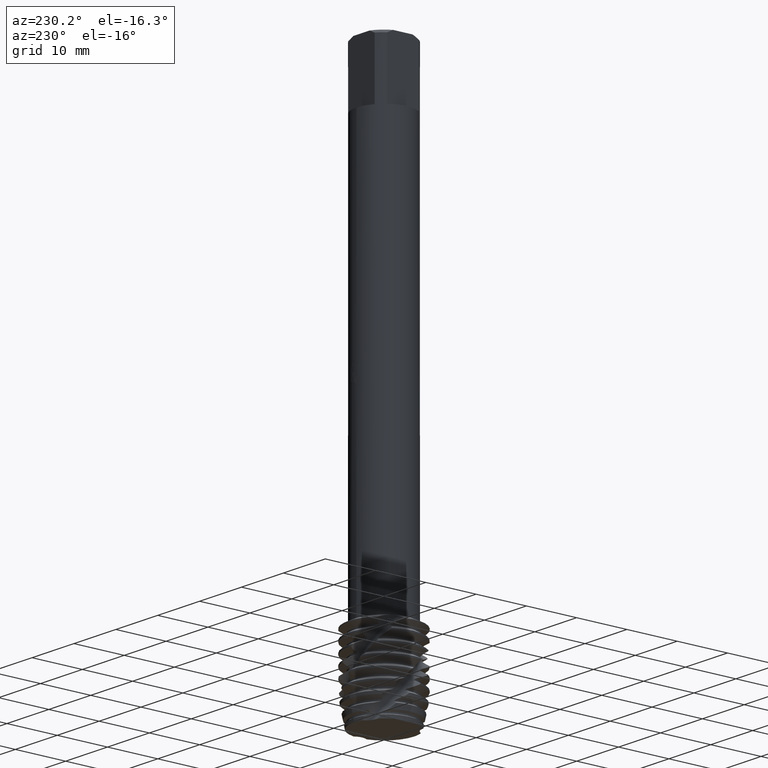
[diagram: clean part render]
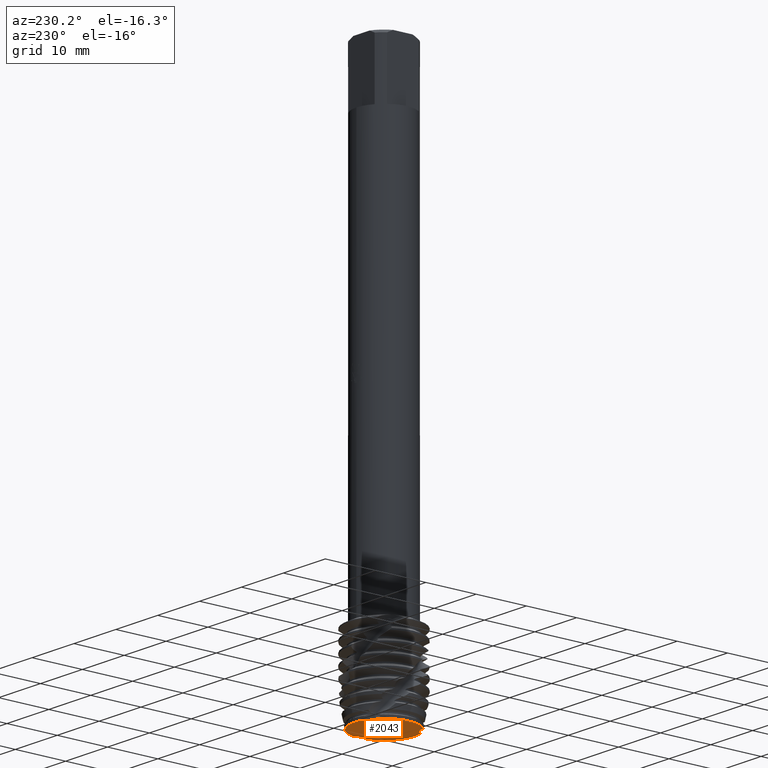
[diagram: same view with one face highlighted and labeled with its STEP entity id]
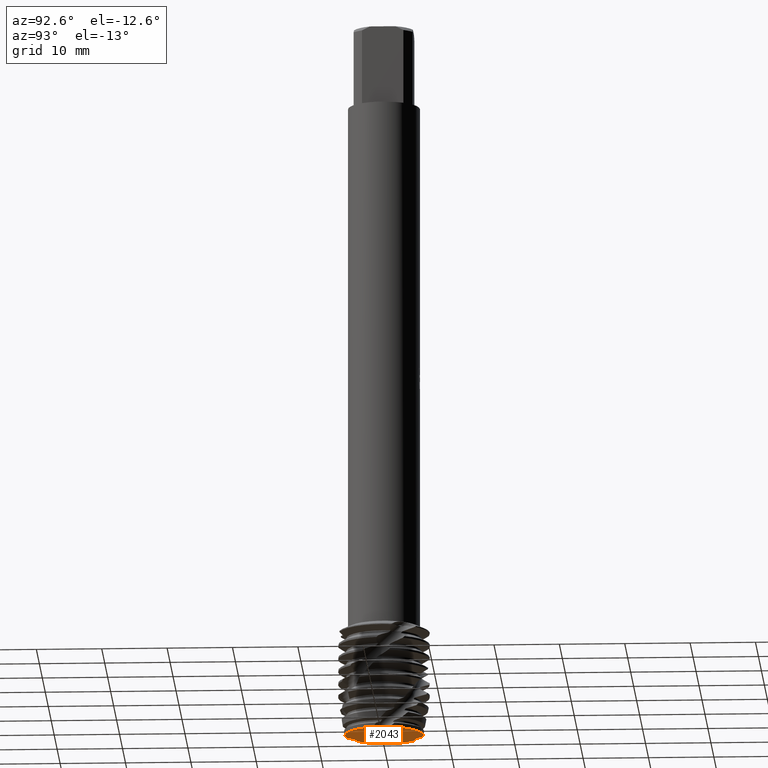
[diagram: same view with one face highlighted and labeled with its STEP entity id]
A machine part, auxiliary view. The second image highlights one B-rep face of the part: STEP entity #2043.
A second angle (auxiliary view) of the same face is appended — the face is thin or edge-on in the first view.
In plain terms, the highlighted planar face has unit normal (0, 0, -1).
Its self-contained STEP definition (entity closure, byte-faithful):
#1387=EDGE_CURVE('',#1527,#3391,#3710,.T.);
#1527=VERTEX_POINT('',#3866);
#1533=EDGE_CURVE('',#2885,#2147,#3872,.T.);
#1775=VERTEX_POINT('',#4143);
#1853=VERTEX_POINT('',#4228);
#1913=EDGE_CURVE('',#1853,#1775,#4291,.T.);
#2043=ADVANCED_FACE('',(#4432),#4433,.T.);
#2147=VERTEX_POINT('',#4544);
#2183=VERTEX_POINT('',#4586);
#2297=EDGE_CURVE('',#2183,#2839,#4714,.T.);
#2327=EDGE_CURVE('',#2147,#2183,#4748,.T.);
#2839=VERTEX_POINT('',#5303);
#2885=VERTEX_POINT('',#5352);
#3123=EDGE_CURVE('',#1775,#2885,#5614,.T.);
#3229=EDGE_CURVE('',#2839,#1527,#5727,.T.);
#3305=EDGE_CURVE('',#3391,#1853,#5808,.T.);
#3391=VERTEX_POINT('',#5899);
#3710=CIRCLE('',#6514,6.0);
#3866=CARTESIAN_POINT('',(5.82772734334397,-1.4274431728237,-110.0));
#3872=B_SPLINE_CURVE_WITH_KNOTS('',3,(#7151,#7152,#7153,#7154,#7155,#7156,#7157,#7158,#7159,#7160,#7161,#7162),.UNSPECIFIED.,.F.,.F.,(4,2,2,2,2,4),(0.0,0.896091143491479,1.79126175668903,2.68553150115345,3.57943211253273,4.46741985184594),.UNSPECIFIED.);
#4143=CARTESIAN_POINT('',(-4.150065721796,-4.3332383392532,-110.0));
#4228=CARTESIAN_POINT('',(-1.99696376137666,-5.65792680544282,-110.0));
#4291=B_SPLINE_CURVE_WITH_KNOTS('',3,(#8117,#8118,#8119,#8120,#8121,#8122,#8123,#8124,#8125,#8126,#8127,#8128,#8129,#8130),.UNSPECIFIED.,.F.,.F.,(4,2,2,2,2,2,4),(0.0,0.894989521054663,1.78913594708907,2.68303224342842,3.5774051301914,4.1889515665384,4.80058551504106),.UNSPECIFIED.);
#4432=FACE_OUTER_BOUND('',#8481,.T.);
#4433=PLANE('',#8482);
#4544=CARTESIAN_POINT('',(-1.67766162154799,5.76068151207693,-110.0));
#4586=CARTESIAN_POINT('',(-7.34763812293426E-016,6.0,-110.0));
#4714=CIRCLE('',#9123,6.0);
#4748=CIRCLE('',#9199,6.0);
#5303=CARTESIAN_POINT('',(5.89839022695474,1.09954205493233,-110.0));
#5352=CARTESIAN_POINT('',(-3.90142646557811,4.5583847505105,-110.0));
#5614=CIRCLE('',#12402,6.0);
#5727=B_SPLINE_CURVE_WITH_KNOTS('',3,(#12654,#12655,#12656,#12657,#12658,#12659,#12660,#12661,#12662,#12663),.UNSPECIFIED.,.F.,.F.,(4,2,2,2,4),(0.0,0.894798042688348,1.78883726698932,2.54733611131288,3.30597297351119),.UNSPECIFIED.);
#5808=CIRCLE('',#12860,6.0);
#5899=CARTESIAN_POINT('',(7.34763812293426E-016,-6.0,-110.0));
#6514=AXIS2_PLACEMENT_3D('',#13527,#13528,#13529);
#7151=CARTESIAN_POINT('',(-5.21743828048773,5.12648544252708,-110.0));
#7152=CARTESIAN_POINT('',(-4.99394682560971,4.92831507143403,-110.0));
#7153=CARTESIAN_POINT('',(-4.73388380730605,4.77568306002796,-110.0));
#7154=CARTESIAN_POINT('',(-4.1701652032495,4.57889776312079,-110.0));
#7155=CARTESIAN_POINT('',(-3.8719436670903,4.53651553832564,-110.0));
#7156=CARTESIAN_POINT('',(-3.27634145286688,4.56854242147867,-110.0));
#7157=CARTESIAN_POINT('',(-2.98467707271751,4.64252776749569,-110.0));
#7158=CARTESIAN_POINT('',(-2.44623676752316,4.89814402362477,-110.0));
#7159=CARTESIAN_POINT('',(-2.20462051896014,5.07727247879724,-110.0));
#7160=CARTESIAN_POINT('',(-1.80493401622101,5.51661266943052,-110.0));
#7161=CARTESIAN_POINT('',(-1.65010756256627,5.77211727241089,-110.0));
#7162=CARTESIAN_POINT('',(-1.54816879550842,6.05,-110.0));
#8117=CARTESIAN_POINT('',(-1.856876414757,-6.05,-110.0));
#8118=CARTESIAN_POINT('',(-1.93131104455992,-5.76110524488962,-110.0));
#8119=CARTESIAN_POINT('',(-2.06145242723529,-5.48951680823209,-110.0));
#8120=CARTESIAN_POINT('',(-2.41843472050492,-5.01179209723975,-110.0));
#8121=CARTESIAN_POINT('',(-2.64175719636899,-4.81018263190323,-110.0));
#8122=CARTESIAN_POINT('',(-3.15308817889933,-4.50398102513404,-110.0));
#8123=CARTESIAN_POINT('',(-3.43616087757801,-4.40230655981805,-110.0));
#8124=CARTESIAN_POINT('',(-4.02553244091043,-4.31311849166491,-110.0));
#8125=CARTESIAN_POINT('',(-4.3261827375662,-4.32652131037162,-110.0));
#8126=CARTESIAN_POINT('',(-4.81387737092985,-4.44539749904456,-110.0));
#8127=CARTESIAN_POINT('',(-5.00460451204982,-4.51988428109342,-110.0));
#8128=CARTESIAN_POINT('',(-5.36134740060218,-4.71731201085074,-110.0));
#8129=CARTESIAN_POINT('',(-5.52577594203004,-4.83938331707292,-110.0));
#8130=CARTESIAN_POINT('',(-5.67190188714248,-4.98156014696617,-110.0));
#8481=EDGE_LOOP('',(#14289,#14290,#14291,#14292,#14293,#14294,#14295,#14296));
#8482=AXIS2_PLACEMENT_3D('',#14297,#14298,#14299);
#9123=AXIS2_PLACEMENT_3D('',#14636,#14637,#14638);
#9199=AXIS2_PLACEMENT_3D('',#14680,#14681,#14682);
#12402=AXIS2_PLACEMENT_3D('',#15708,#15709,#15710);
#12654=CARTESIAN_POINT('',(6.05000000000001,1.29225754710844,-110.0));
#12655=CARTESIAN_POINT('',(5.85329896979396,1.06804488029366,-110.0));
#12656=CARTESIAN_POINT('',(5.70227345195429,0.807567730667933,-110.0));
#12657=CARTESIAN_POINT('',(5.50873707568734,0.243579243524388,-110.0));
#12658=CARTESIAN_POINT('',(5.46799464200449,-0.0544772154239155,-110.0));
#12659=CARTESIAN_POINT('',(5.50042363837641,-0.604358722399305,-110.0));
#12660=CARTESIAN_POINT('',(5.5570370798436,-0.852535916305525,-110.0));
#12661=CARTESIAN_POINT('',(5.74910218996152,-1.32034946433027,-110.0));
#12662=CARTESIAN_POINT('',(5.88324157118744,-1.53675063383965,-110.0));
#12663=CARTESIAN_POINT('',(6.05,-1.72685335464484,-110.0));
#12860=AXIS2_PLACEMENT_3D('',#15868,#15869,#15870);
#13527=CARTESIAN_POINT('',(0.0,0.0,-110.0));
#13528=DIRECTION('',(0.0,0.0,-1.0));
#13529=DIRECTION('',(0.0,1.0,0.0));
#14289=ORIENTED_EDGE('',*,*,#3229,.T.);
#14290=ORIENTED_EDGE('',*,*,#1387,.T.);
#14291=ORIENTED_EDGE('',*,*,#3305,.T.);
#14292=ORIENTED_EDGE('',*,*,#1913,.T.);
#14293=ORIENTED_EDGE('',*,*,#3123,.T.);
#14294=ORIENTED_EDGE('',*,*,#1533,.T.);
#14295=ORIENTED_EDGE('',*,*,#2327,.T.);
#14296=ORIENTED_EDGE('',*,*,#2297,.T.);
#14297=CARTESIAN_POINT('',(0.0,3.0,-110.0));
#14298=DIRECTION('',(0.0,0.0,-1.0));
#14299=DIRECTION('',(0.0,1.0,0.0));
#14636=CARTESIAN_POINT('',(0.0,0.0,-110.0));
#14637=DIRECTION('',(0.0,0.0,-1.0));
#14638=DIRECTION('',(0.0,1.0,0.0));
#14680=CARTESIAN_POINT('',(0.0,0.0,-110.0));
#14681=DIRECTION('',(0.0,0.0,-1.0));
#14682=DIRECTION('',(0.0,1.0,0.0));
#15708=CARTESIAN_POINT('',(0.0,0.0,-110.0));
#15709=DIRECTION('',(0.0,0.0,-1.0));
#15710=DIRECTION('',(0.0,1.0,0.0));
#15868=CARTESIAN_POINT('',(0.0,0.0,-110.0));
#15869=DIRECTION('',(0.0,0.0,-1.0));
#15870=DIRECTION('',(0.0,1.0,0.0));